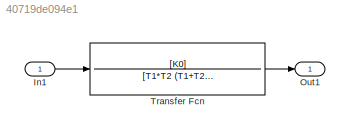
MODEL slx_40719de094e1
KIND model
CONFIG AbsTol = auto
CONFIG EnableMultiTasking = off
CONFIG FixedStep = auto
CONFIG MaxStep = auto
CONFIG MinStep = auto
CONFIG RelTol = 1e-3
CONFIG SampleTimeConstraint = Unconstrained
CONFIG SolverName = VariableStepAuto
CONFIG StartTime = 0.0
CONFIG StopTime = 10.0
BLOCK [Inport] In1
BLOCK [Outport] Out1
BLOCK [TransferFcn] Transfer Fcn
  Denominator = [T1*T2 (T1+T2) 1]
  Numerator = [K0]
LINE In1:1 -> Transfer Fcn:1
LINE Transfer Fcn:1 -> Out1:1
